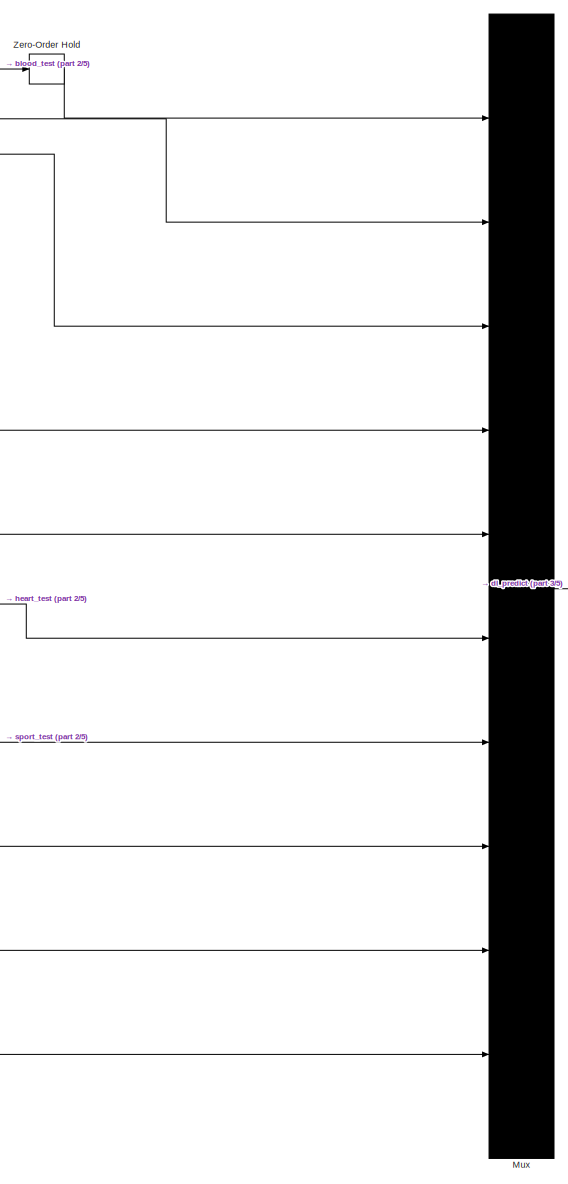
[diagram: root canvas - part 1/5, top center region]
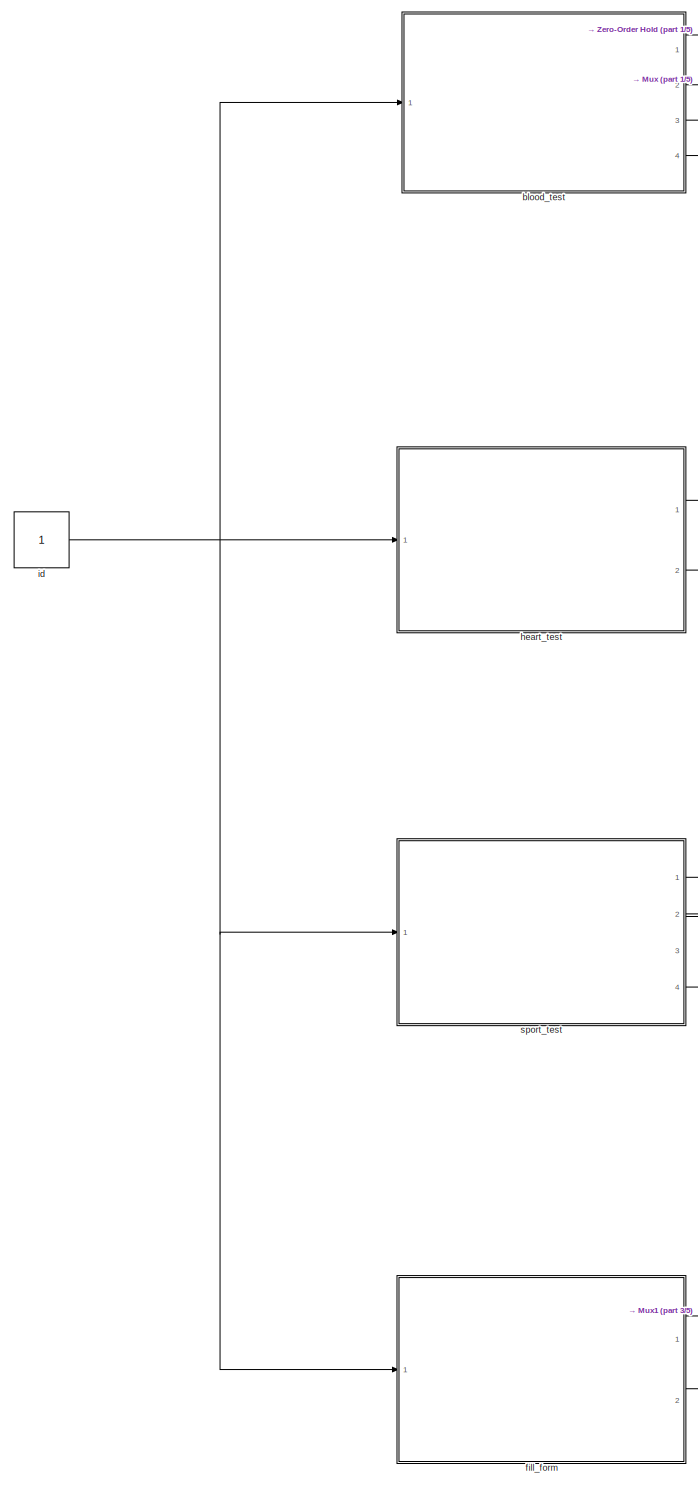
[diagram: root canvas - part 2/5, middle left region]
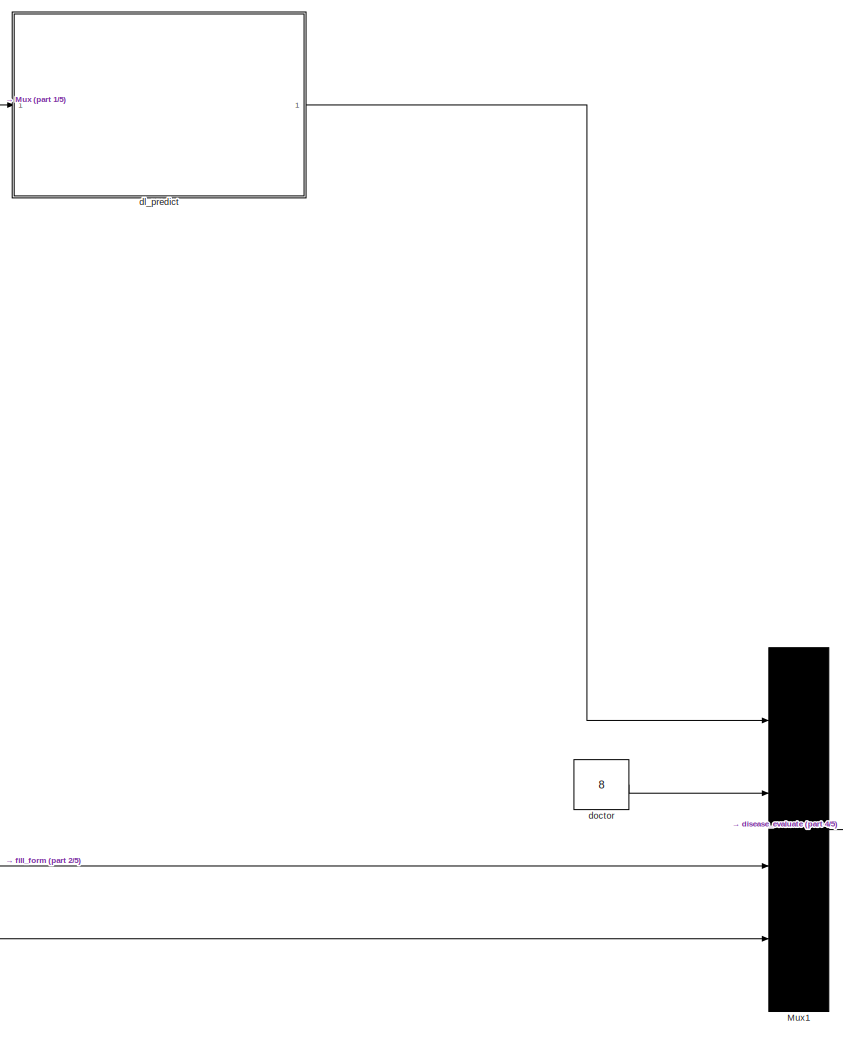
[diagram: root canvas - part 3/5, central region]
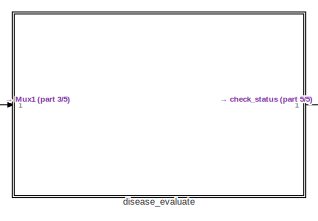
[diagram: root canvas - part 4/5, middle right region]
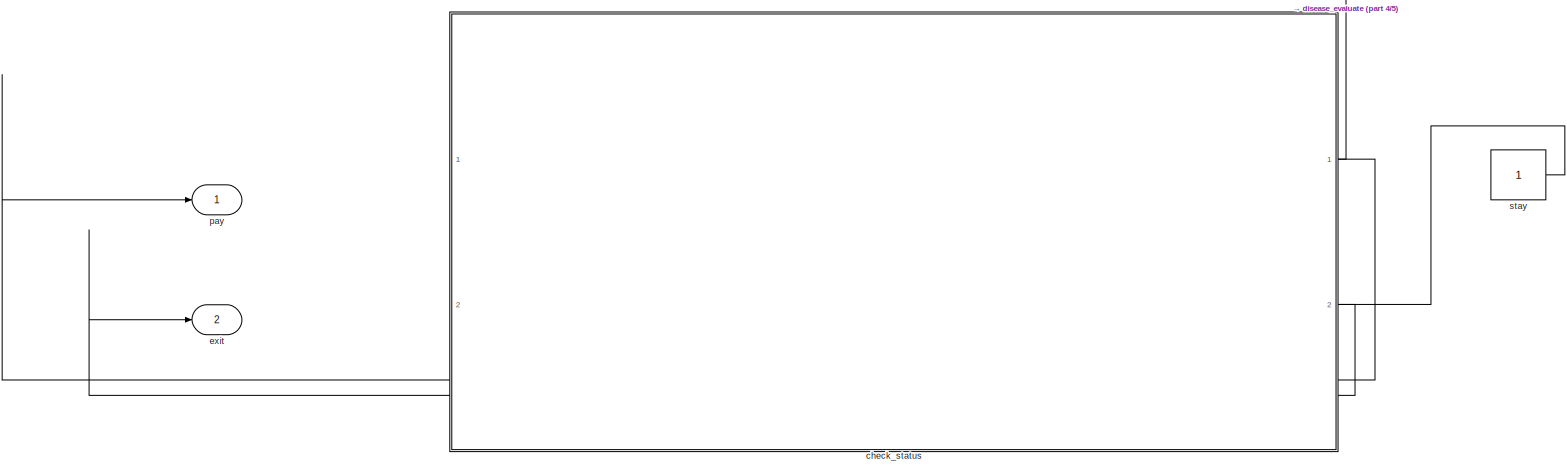
[diagram: root canvas - part 5/5, bottom right region]
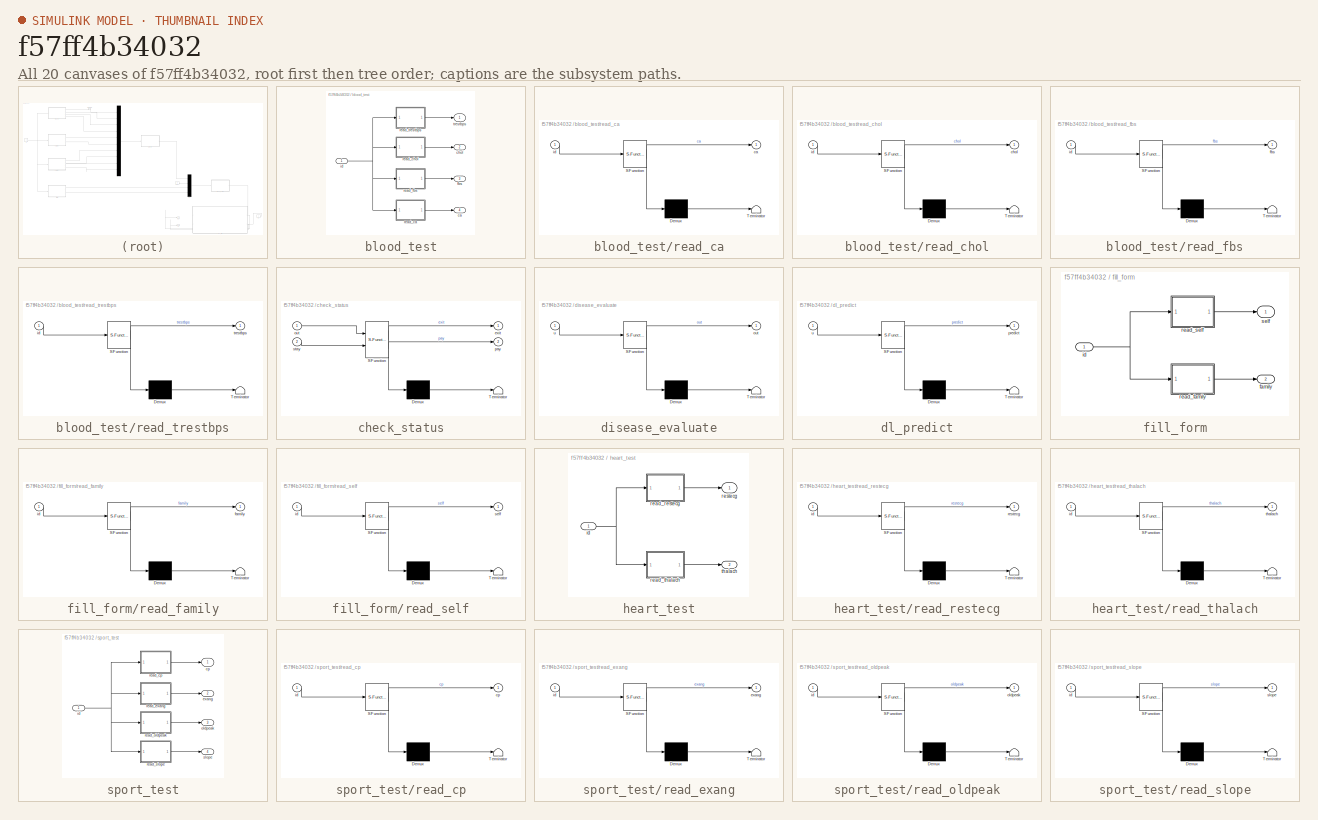
[diagram: thumbnail index - all 20 canvases of the model, root first then tree order]
MODEL slx_f57ff4b34032
KIND model
CONFIG AbsTol = auto
CONFIG EnableMultiTasking = off
CONFIG FixedStep = auto
CONFIG MaxStep = auto
CONFIG MinStep = auto
CONFIG RelTol = 1e-3
CONFIG SampleTimeConstraint = Unconstrained
CONFIG SolverName = VariableStepAuto
CONFIG StartTime = 0.0
CONFIG StopTime = 10
BLOCK [Mux] Mux
  DisplayOption = bar
  Inputs = 10
  Ports = [10, 1]
BLOCK [Mux] Mux1
  DisplayOption = bar
  Ports = [4, 1]
BLOCK [ZeroOrderHold] Zero-Order Hold
  SampleTime = 5
BLOCK [SubSystem] blood_test
  Ports = [1, 4]
  RequestExecContextInheritance = off
BLOCK [Outport] blood_test/ca
  Port = 4
BLOCK [Outport] blood_test/chol
  Port = 2
BLOCK [Outport] blood_test/fbs
  Port = 3
BLOCK [Inport] blood_test/id
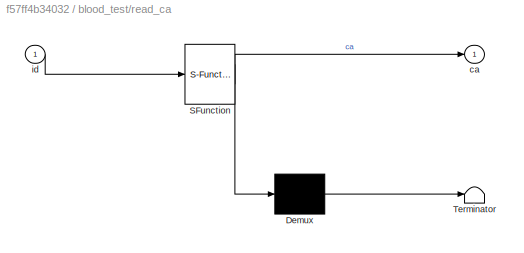
BLOCK [SubSystem] blood_test/read_ca
  ErrorFcn = Stateflow.Translate.translate
  PermitHierarchicalResolution = ExplicitOnly
  Ports = [1, 1]
  RequestExecContextInheritance = off
  SFBlockType = MATLAB Function
  TreatAsAtomicUnit = on
BLOCK [Demux] blood_test/read_ca/ Demux 
  Outputs = 1
  Ports = [1, 1]
BLOCK [S-Function] blood_test/read_ca/ SFunction 
  EnableBusSupport = on
  FunctionName = sf_sfun
  PortCounts = [1 2]
  Ports = [1, 2]
  SFcnIsStateOwnerBlock = off
  SFunctionDeploymentMode = off
  Tag = Stateflow S-Function 10
BLOCK [Terminator] blood_test/read_ca/ Terminator 
BLOCK [Outport] blood_test/read_ca/ca
BLOCK [Inport] blood_test/read_ca/id
BLOCK [SubSystem] blood_test/read_chol
  ErrorFcn = Stateflow.Translate.translate
  PermitHierarchicalResolution = ExplicitOnly
  Ports = [1, 1]
  RequestExecContextInheritance = off
  SFBlockType = MATLAB Function
  TreatAsAtomicUnit = on
BLOCK [Demux] blood_test/read_chol/ Demux 
  Outputs = 1
  Ports = [1, 1]
BLOCK [S-Function] blood_test/read_chol/ SFunction 
  EnableBusSupport = on
  FunctionName = sf_sfun
  PortCounts = [1 2]
  Ports = [1, 2]
  SFcnIsStateOwnerBlock = off
  SFunctionDeploymentMode = off
  Tag = Stateflow S-Function 1
BLOCK [Terminator] blood_test/read_chol/ Terminator 
BLOCK [Outport] blood_test/read_chol/chol
BLOCK [Inport] blood_test/read_chol/id
BLOCK [SubSystem] blood_test/read_fbs
  ErrorFcn = Stateflow.Translate.translate
  PermitHierarchicalResolution = ExplicitOnly
  Ports = [1, 1]
  RequestExecContextInheritance = off
  SFBlockType = MATLAB Function
  TreatAsAtomicUnit = on
BLOCK [Demux] blood_test/read_fbs/ Demux 
  Outputs = 1
  Ports = [1, 1]
BLOCK [S-Function] blood_test/read_fbs/ SFunction 
  EnableBusSupport = on
  FunctionName = sf_sfun
  PortCounts = [1 2]
  Ports = [1, 2]
  SFcnIsStateOwnerBlock = off
  SFunctionDeploymentMode = off
  Tag = Stateflow S-Function 3
BLOCK [Terminator] blood_test/read_fbs/ Terminator 
BLOCK [Outport] blood_test/read_fbs/fbs
BLOCK [Inport] blood_test/read_fbs/id
BLOCK [SubSystem] blood_test/read_trestbps
  ErrorFcn = Stateflow.Translate.translate
  PermitHierarchicalResolution = ExplicitOnly
  Ports = [1, 1]
  RequestExecContextInheritance = off
  SFBlockType = MATLAB Function
  TreatAsAtomicUnit = on
BLOCK [Demux] blood_test/read_trestbps/ Demux 
  Outputs = 1
  Ports = [1, 1]
BLOCK [S-Function] blood_test/read_trestbps/ SFunction 
  EnableBusSupport = on
  FunctionName = sf_sfun
  PortCounts = [1 2]
  Ports = [1, 2]
  SFcnIsStateOwnerBlock = off
  SFunctionDeploymentMode = off
  Tag = Stateflow S-Function 2
BLOCK [Terminator] blood_test/read_trestbps/ Terminator 
BLOCK [Inport] blood_test/read_trestbps/id
BLOCK [Outport] blood_test/read_trestbps/trestbps
BLOCK [Outport] blood_test/trestbps
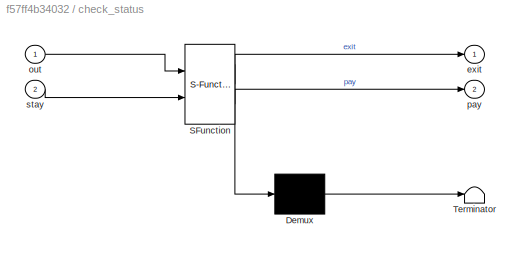
BLOCK [SubSystem] check_status
  ErrorFcn = Stateflow.Translate.translate
  PermitHierarchicalResolution = ExplicitOnly
  PortSchema = {"entries":[{"content":{"sides":[{"content":{"connectorIds":[]},"type":"ConnectorPlacement.EquallySpacedRectSide","uuid":"e038a661-1200-4a0e-925f-654266734c7e"},{"content":{"connectorIds":["In1","In2","Out1","Out2"],"side":"RIGHT"},"type":"ConnectorPlacement.EquallySpacedRectSide","uuid":"3ae57c8b-62f9-42d5-9b10-2ac471a64b9f"},{"content":{"connectorIds":[],"side":"TOP"},"type":"ConnectorPlacement....<+254ch>
  Ports = [2, 2]
  RequestExecContextInheritance = off
  SFBlockType = Chart
  TreatAsAtomicUnit = on
BLOCK [Demux] check_status/ Demux 
  Outputs = 1
  Ports = [1, 1]
BLOCK [S-Function] check_status/ SFunction 
  EnableBusSupport = on
  FunctionName = sf_sfun
  PortCounts = [2 3]
  Ports = [2, 3]
  SFcnIsStateOwnerBlock = off
  SFunctionDeploymentMode = off
  Tag = Stateflow S-Function 15
BLOCK [Terminator] check_status/ Terminator 
BLOCK [Outport] check_status/exit
BLOCK [Inport] check_status/out
BLOCK [Outport] check_status/pay
  Port = 2
BLOCK [Inport] check_status/stay
  Port = 2
BLOCK [SubSystem] disease_evaluate
  ErrorFcn = Stateflow.Translate.translate
  PermitHierarchicalResolution = ExplicitOnly
  Ports = [1, 1]
  RequestExecContextInheritance = off
  SFBlockType = MATLAB Function
  TreatAsAtomicUnit = on
BLOCK [Demux] disease_evaluate/ Demux 
  Outputs = 1
  Ports = [1, 1]
BLOCK [S-Function] disease_evaluate/ SFunction 
  EnableBusSupport = on
  FunctionName = sf_sfun
  PortCounts = [1 2]
  Ports = [1, 2]
  SFcnIsStateOwnerBlock = off
  SFunctionDeploymentMode = off
  Tag = Stateflow S-Function 14
BLOCK [Terminator] disease_evaluate/ Terminator 
BLOCK [Outport] disease_evaluate/out
BLOCK [Inport] disease_evaluate/u
BLOCK [SubSystem] dl_predict
  ErrorFcn = Stateflow.Translate.translate
  PermitHierarchicalResolution = ExplicitOnly
  Ports = [1, 1]
  RequestExecContextInheritance = off
  SFBlockType = MATLAB Function
  TreatAsAtomicUnit = on
BLOCK [Demux] dl_predict/ Demux 
  Outputs = 1
  Ports = [1, 1]
BLOCK [S-Function] dl_predict/ SFunction 
  EnableBusSupport = on
  FunctionName = sf_sfun
  PortCounts = [1 2]
  Ports = [1, 2]
  SFcnIsStateOwnerBlock = off
  SFunctionDeploymentMode = off
  Tag = Stateflow S-Function 13
BLOCK [Terminator] dl_predict/ Terminator 
BLOCK [Outport] dl_predict/predict
BLOCK [Inport] dl_predict/u
BLOCK [Constant] doctor
  Value = 8
BLOCK [Outport] exit
  Port = 2
BLOCK [SubSystem] fill_form
  Ports = [1, 2]
  RequestExecContextInheritance = off
BLOCK [Outport] fill_form/family
  Port = 2
BLOCK [Inport] fill_form/id
BLOCK [SubSystem] fill_form/read_family
  ErrorFcn = Stateflow.Translate.translate
  PermitHierarchicalResolution = ExplicitOnly
  Ports = [1, 1]
  RequestExecContextInheritance = off
  SFBlockType = MATLAB Function
  TreatAsAtomicUnit = on
BLOCK [Demux] fill_form/read_family/ Demux 
  Outputs = 1
  Ports = [1, 1]
BLOCK [S-Function] fill_form/read_family/ SFunction 
  EnableBusSupport = on
  FunctionName = sf_sfun
  PortCounts = [1 2]
  Ports = [1, 2]
  SFcnIsStateOwnerBlock = off
  SFunctionDeploymentMode = off
  Tag = Stateflow S-Function 12
BLOCK [Terminator] fill_form/read_family/ Terminator 
BLOCK [Outport] fill_form/read_family/family
BLOCK [Inport] fill_form/read_family/id
BLOCK [SubSystem] fill_form/read_self
  ErrorFcn = Stateflow.Translate.translate
  PermitHierarchicalResolution = ExplicitOnly
  Ports = [1, 1]
  RequestExecContextInheritance = off
  SFBlockType = MATLAB Function
  TreatAsAtomicUnit = on
BLOCK [Demux] fill_form/read_self/ Demux 
  Outputs = 1
  Ports = [1, 1]
BLOCK [S-Function] fill_form/read_self/ SFunction 
  EnableBusSupport = on
  FunctionName = sf_sfun
  PortCounts = [1 2]
  Ports = [1, 2]
  SFcnIsStateOwnerBlock = off
  SFunctionDeploymentMode = off
  Tag = Stateflow S-Function 11
BLOCK [Terminator] fill_form/read_self/ Terminator 
BLOCK [Inport] fill_form/read_self/id
BLOCK [Outport] fill_form/read_self/self
BLOCK [Outport] fill_form/self
BLOCK [SubSystem] heart_test
  Ports = [1, 2]
  RequestExecContextInheritance = off
BLOCK [Inport] heart_test/id
BLOCK [SubSystem] heart_test/read_restecg
  ErrorFcn = Stateflow.Translate.translate
  PermitHierarchicalResolution = ExplicitOnly
  Ports = [1, 1]
  RequestExecContextInheritance = off
  SFBlockType = MATLAB Function
  TreatAsAtomicUnit = on
BLOCK [Demux] heart_test/read_restecg/ Demux 
  Outputs = 1
  Ports = [1, 1]
BLOCK [S-Function] heart_test/read_restecg/ SFunction 
  EnableBusSupport = on
  FunctionName = sf_sfun
  PortCounts = [1 2]
  Ports = [1, 2]
  SFcnIsStateOwnerBlock = off
  SFunctionDeploymentMode = off
  Tag = Stateflow S-Function 6
BLOCK [Terminator] heart_test/read_restecg/ Terminator 
BLOCK [Inport] heart_test/read_restecg/id
BLOCK [Outport] heart_test/read_restecg/restecg
BLOCK [SubSystem] heart_test/read_thalach
  ErrorFcn = Stateflow.Translate.translate
  PermitHierarchicalResolution = ExplicitOnly
  Ports = [1, 1]
  RequestExecContextInheritance = off
  SFBlockType = MATLAB Function
  TreatAsAtomicUnit = on
BLOCK [Demux] heart_test/read_thalach/ Demux 
  Outputs = 1
  Ports = [1, 1]
BLOCK [S-Function] heart_test/read_thalach/ SFunction 
  EnableBusSupport = on
  FunctionName = sf_sfun
  PortCounts = [1 2]
  Ports = [1, 2]
  SFcnIsStateOwnerBlock = off
  SFunctionDeploymentMode = off
  Tag = Stateflow S-Function 4
BLOCK [Terminator] heart_test/read_thalach/ Terminator 
BLOCK [Inport] heart_test/read_thalach/id
BLOCK [Outport] heart_test/read_thalach/thalach
BLOCK [Outport] heart_test/restecg
BLOCK [Outport] heart_test/thalach
  Port = 2
BLOCK [Constant] id
BLOCK [Outport] pay
BLOCK [SubSystem] sport_test
  Ports = [1, 4]
  RequestExecContextInheritance = off
BLOCK [Outport] sport_test/cp
BLOCK [Outport] sport_test/exang
  Port = 2
BLOCK [Inport] sport_test/id
BLOCK [Outport] sport_test/oldpeak
  Port = 3
BLOCK [SubSystem] sport_test/read_cp
  ErrorFcn = Stateflow.Translate.translate
  PermitHierarchicalResolution = ExplicitOnly
  Ports = [1, 1]
  RequestExecContextInheritance = off
  SFBlockType = MATLAB Function
  TreatAsAtomicUnit = on
BLOCK [Demux] sport_test/read_cp/ Demux 
  Outputs = 1
  Ports = [1, 1]
BLOCK [S-Function] sport_test/read_cp/ SFunction 
  EnableBusSupport = on
  FunctionName = sf_sfun
  PortCounts = [1 2]
  Ports = [1, 2]
  SFcnIsStateOwnerBlock = off
  SFunctionDeploymentMode = off
  Tag = Stateflow S-Function 5
BLOCK [Terminator] sport_test/read_cp/ Terminator 
BLOCK [Outport] sport_test/read_cp/cp
BLOCK [Inport] sport_test/read_cp/id
BLOCK [SubSystem] sport_test/read_exang
  ErrorFcn = Stateflow.Translate.translate
  PermitHierarchicalResolution = ExplicitOnly
  Ports = [1, 1]
  RequestExecContextInheritance = off
  SFBlockType = MATLAB Function
  TreatAsAtomicUnit = on
BLOCK [Demux] sport_test/read_exang/ Demux 
  Outputs = 1
  Ports = [1, 1]
BLOCK [S-Function] sport_test/read_exang/ SFunction 
  EnableBusSupport = on
  FunctionName = sf_sfun
  PortCounts = [1 2]
  Ports = [1, 2]
  SFcnIsStateOwnerBlock = off
  SFunctionDeploymentMode = off
  Tag = Stateflow S-Function 7
BLOCK [Terminator] sport_test/read_exang/ Terminator 
BLOCK [Outport] sport_test/read_exang/exang
BLOCK [Inport] sport_test/read_exang/id
BLOCK [SubSystem] sport_test/read_oldpeak
  ErrorFcn = Stateflow.Translate.translate
  PermitHierarchicalResolution = ExplicitOnly
  Ports = [1, 1]
  RequestExecContextInheritance = off
  SFBlockType = MATLAB Function
  TreatAsAtomicUnit = on
BLOCK [Demux] sport_test/read_oldpeak/ Demux 
  Outputs = 1
  Ports = [1, 1]
BLOCK [S-Function] sport_test/read_oldpeak/ SFunction 
  EnableBusSupport = on
  FunctionName = sf_sfun
  PortCounts = [1 2]
  Ports = [1, 2]
  SFcnIsStateOwnerBlock = off
  SFunctionDeploymentMode = off
  Tag = Stateflow S-Function 8
BLOCK [Terminator] sport_test/read_oldpeak/ Terminator 
BLOCK [Inport] sport_test/read_oldpeak/id
BLOCK [Outport] sport_test/read_oldpeak/oldpeak
BLOCK [SubSystem] sport_test/read_slope
  ErrorFcn = Stateflow.Translate.translate
  PermitHierarchicalResolution = ExplicitOnly
  Ports = [1, 1]
  RequestExecContextInheritance = off
  SFBlockType = MATLAB Function
  TreatAsAtomicUnit = on
BLOCK [Demux] sport_test/read_slope/ Demux 
  Outputs = 1
  Ports = [1, 1]
BLOCK [S-Function] sport_test/read_slope/ SFunction 
  EnableBusSupport = on
  FunctionName = sf_sfun
  PortCounts = [1 2]
  Ports = [1, 2]
  SFcnIsStateOwnerBlock = off
  SFunctionDeploymentMode = off
  Tag = Stateflow S-Function 9
BLOCK [Terminator] sport_test/read_slope/ Terminator 
BLOCK [Inport] sport_test/read_slope/id
BLOCK [Outport] sport_test/read_slope/slope
BLOCK [Outport] sport_test/slope
  Port = 4
BLOCK [Constant] stay
LINE Mux1:1 -> disease_evaluate:1
LINE Mux:1 -> dl_predict:1
LINE Zero-Order Hold:1 -> Mux:1
NET blood_test/id:1 -> blood_test/read_ca:1, blood_test/read_chol:1, blood_test/read_fbs:1, blood_test/read_trestbps:1
LINE blood_test/read_ca:1 -> blood_test/ca:1
LINE blood_test/read_chol:1 -> blood_test/chol:1
LINE blood_test/read_fbs:1 -> blood_test/fbs:1
LINE blood_test/read_trestbps:1 -> blood_test/trestbps:1
LINE blood_test:1 -> Zero-Order Hold:1
LINE blood_test:2 -> Mux:2
LINE blood_test:3 -> Mux:3
LINE blood_test:4 -> Mux:4
LINE check_status:1 -> pay:1
LINE check_status:2 -> exit:1
LINE disease_evaluate:1 -> check_status:1
LINE dl_predict:1 -> Mux1:1
LINE doctor:1 -> Mux1:2
NET fill_form/id:1 -> fill_form/read_family:1, fill_form/read_self:1
LINE fill_form/read_family:1 -> fill_form/family:1
LINE fill_form/read_self:1 -> fill_form/self:1
LINE fill_form:1 -> Mux1:3
LINE fill_form:2 -> Mux1:4
NET heart_test/id:1 -> heart_test/read_restecg:1, heart_test/read_thalach:1
LINE heart_test/read_restecg:1 -> heart_test/restecg:1
LINE heart_test/read_thalach:1 -> heart_test/thalach:1
LINE heart_test:1 -> Mux:5
LINE heart_test:2 -> Mux:6
NET id:1 -> blood_test:1, fill_form:1, heart_test:1, sport_test:1
NET sport_test/id:1 -> sport_test/read_cp:1, sport_test/read_exang:1, sport_test/read_oldpeak:1, sport_test/read_slope:1
LINE sport_test/read_cp:1 -> sport_test/cp:1
LINE sport_test/read_exang:1 -> sport_test/exang:1
LINE sport_test/read_oldpeak:1 -> sport_test/oldpeak:1
LINE sport_test/read_slope:1 -> sport_test/slope:1
LINE sport_test:1 -> Mux:7
LINE sport_test:2 -> Mux:8
LINE sport_test:3 -> Mux:9
LINE sport_test:4 -> Mux:10
LINE stay:1 -> check_status:2
note: NET lines group one-source signal fan-out (src -> all destinations, sorted); 1:1 wires keep LINE
CHART fill_form/read_self states=1 transitions=1
  STATE_LABEL 'eML_blk_kernel()'
  STATE_LABEL "SCRIPT:\nfunction self = fcn(id)\n  result = 0;\n  coder.extrinsic('py.read_self.read');\n  result = py.read_self.read(id);\nself = 0;\n"
CHART fill_form/read_family states=1 transitions=1
  STATE_LABEL 'eML_blk_kernel()'
  STATE_LABEL "SCRIPT:\nfunction family = fcn(id)\n  result = 0;\n  coder.extrinsic('py.read_family.read');\n  result = py.read_family.read(id);\nfamily = result;\n"
CHART dl_predict states=1 transitions=1
  STATE_LABEL 'eML_blk_kernel()'
  STATE_LABEL "SCRIPT:\nfunction predict = fcn(u)\n  result = 0;\n  coder.extrinsic('py.dl.predict');\n  result = double(py.dl.predict(u(1), u(2), u(3), u(4), u(5), u(6), u(7), u(8), u(9), u(10)));\npredict = result;\n    "
CHART disease_evaluate states=1 transitions=1
  STATE_LABEL 'eML_blk_kernel()'
  STATE_LABEL 'SCRIPT:\nfunction out = fcn(u)\n  predict = u(1);\n  doctor = u(2);\n  self = u(3);\n  family = u(4);\n  \n  % set the weight respectively\n  predict = predict * 0.25;\n  doctor = doctor * 0.6;\n  self = self * 0.1;\n  family = family * 0.05;\n  \n  result = predict + doctor + self + family;\n  disp(result);\n  if result >= 0.6\n      out = 1;\n  else\n      out = 0;\n  end    \n'
CHART check_status states=0 transitions=8
CHART blood_test/read_chol states=1 transitions=1
  STATE_LABEL 'eML_blk_kernel()'
  STATE_LABEL "SCRIPT:\nfunction chol = fcn(id)\n  result = 0;\n  coder.extrinsic('py.read_chol.read');\n  result = py.read_chol.read(id);\nchol = result;\n"
CHART blood_test/read_trestbps states=1 transitions=1
  STATE_LABEL 'eML_blk_kernel()'
  STATE_LABEL "SCRIPT:\nfunction trestbps = fcn(id)\n  result = 0;\n  coder.extrinsic('py.read_trestbps.read');\n  result = py.read_trestbps.read(id);\ntrestbps = result;\n"
CHART blood_test/read_fbs states=1 transitions=1
  STATE_LABEL 'eML_blk_kernel()'
  STATE_LABEL "SCRIPT:\nfunction fbs = fcn(id)\n  result = 0;\n  coder.extrinsic('py.read_fbs.read');\n  result = py.read_fbs.read(id);\nfbs = result;\n"
CHART heart_test/read_thalach states=1 transitions=1
  STATE_LABEL 'eML_blk_kernel()'
  STATE_LABEL "SCRIPT:\nfunction thalach = fcn(id)\n  result = 0;\n  coder.extrinsic('py.read_thalach.read');\n  result = py.read_thalach.read(id);\nthalach = result;\n"
CHART sport_test/read_cp states=1 transitions=1
  STATE_LABEL 'eML_blk_kernel()'
  STATE_LABEL "SCRIPT:\nfunction cp = fcn(id)\n  result = 0;\n  coder.extrinsic('py.read_cp.read');\n  result = py.read_cp.read(id);\ncp = result;\n"
CHART heart_test/read_restecg states=1 transitions=1
  STATE_LABEL 'eML_blk_kernel()'
  STATE_LABEL "SCRIPT:\nfunction restecg = fcn(id)\n  result = 0;\n  coder.extrinsic('py.read_restecg.read');\n  result = py.read_restecg.read(id);\nrestecg = result;\n"
CHART sport_test/read_exang states=1 transitions=1
  STATE_LABEL 'eML_blk_kernel()'
  STATE_LABEL "SCRIPT:\nfunction exang = fcn(id)\n  result = 0;\n  coder.extrinsic('py.read_exang.read');\n  result = py.read_exang.read(id);\nexang = result;\n"
CHART sport_test/read_oldpeak states=1 transitions=1
  STATE_LABEL 'eML_blk_kernel()'
  STATE_LABEL "SCRIPT:\nfunction oldpeak = fcn(id)\n  result = 0;\n  coder.extrinsic('py.read_oldpeak.read');\n  result = py.read_oldpeak.read(id);\noldpeak = result;\n"
CHART sport_test/read_slope states=1 transitions=1
  STATE_LABEL 'eML_blk_kernel()'
  STATE_LABEL "SCRIPT:\nfunction slope = fcn(id)\n  result = 0;\n  coder.extrinsic('py.read_slope.read');\n  result = py.read_slope.read(id);\nslope = result;\n"
CHART blood_test/read_ca states=1 transitions=1
  STATE_LABEL 'eML_blk_kernel()'
  STATE_LABEL "SCRIPT:\nfunction ca = fcn(id)\n  result = 0;\n  coder.extrinsic('py.read_ca.read');\n  result = py.read_ca.read(id);\nca = result;\n"
CHART  states=0 transitions=0
CHART  states=0 transitions=0
CHART  states=0 transitions=0
CHART  states=0 transitions=0
CHART  states=0 transitions=0
CHART  states=0 transitions=0
CHART  states=0 transitions=0
CHART  states=0 transitions=0
CHART  states=0 transitions=0
CHART  states=0 transitions=0
CHART  states=0 transitions=0
CHART  states=0 transitions=0
CHART  states=0 transitions=0
CHART  states=0 transitions=0
CHART  states=0 transitions=0
